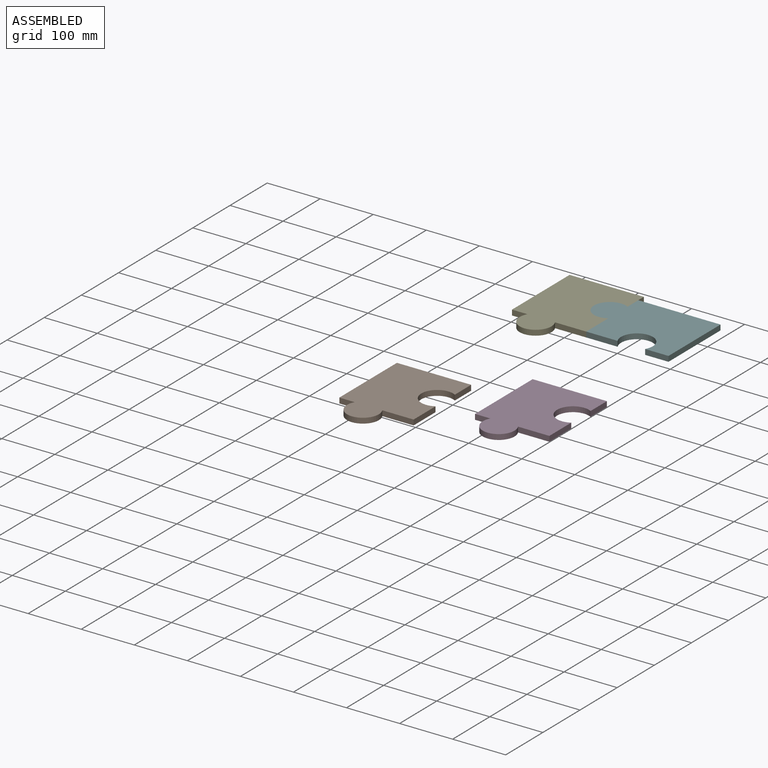
[diagram: assembled view]
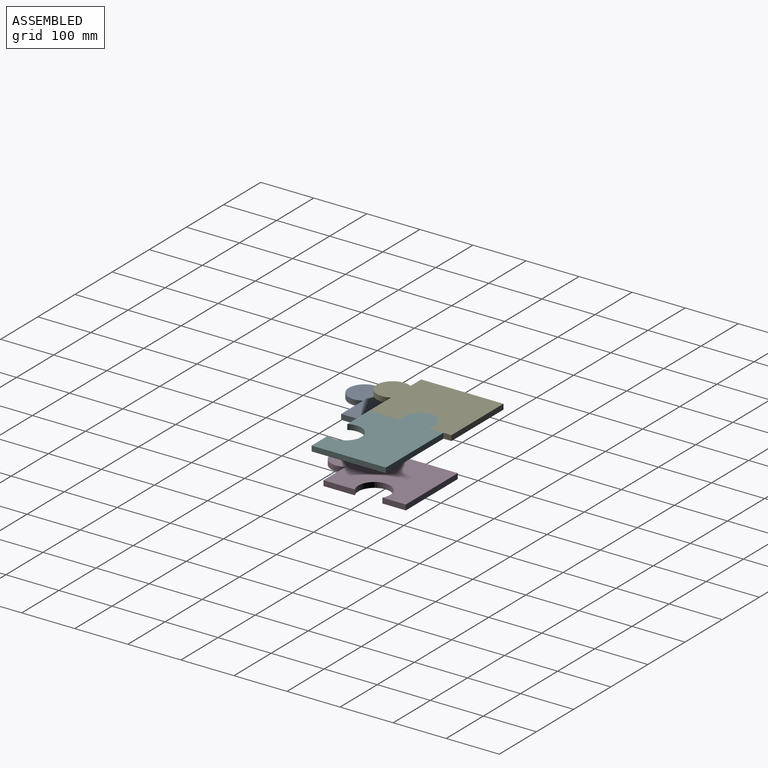
[diagram: assembled view, second angle]
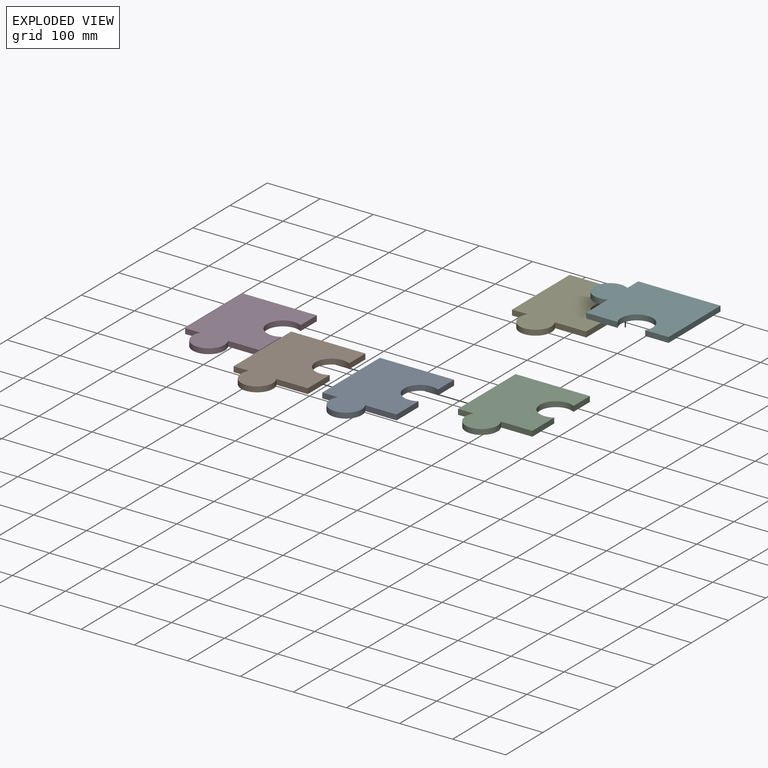
[diagram: exploded view]
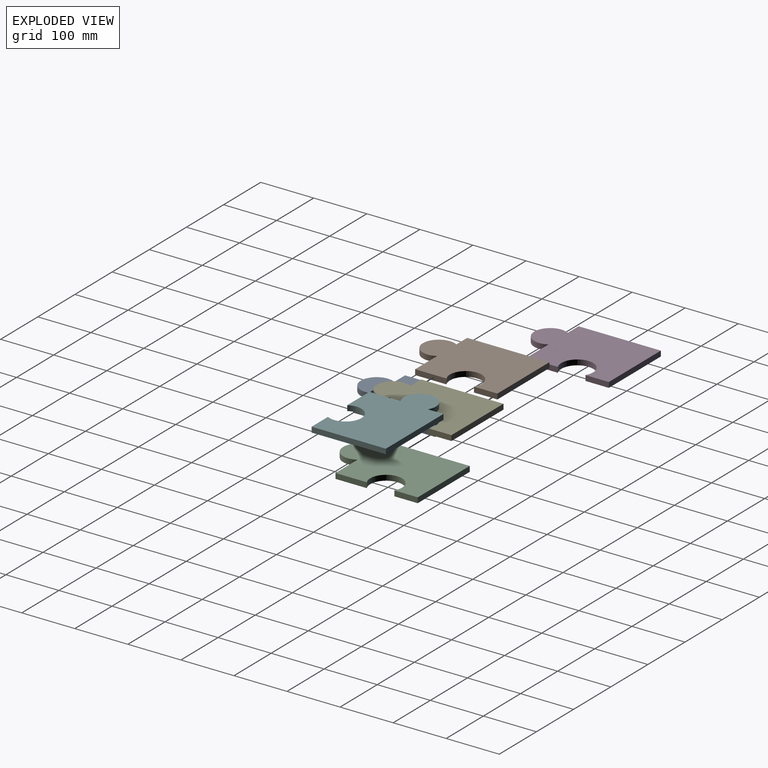
[diagram: exploded view, second angle]
ASSEMBLY  parts=6 mates=3
PART A: 10 faces, bbox 140x200x10 mm
  f0: plane 59.02x10mm, normal (0,-1,0), area 590.2mm2, adj f1,f7,f8,f9
  f1: plane 59.02x10mm, normal (1,0,0), area 590.2mm2, adj f0,f2,f8,f9
  f2: cylinder r=30mm len=60mm, axis (0,0,-1), area 1256.6mm2, adj f1,f3,f8,f9
  f3: plane 44.02x10mm, normal (1,0,0), area 440.2mm2, adj f2,f4,f8,f9
  f4: plane 140x10mm, normal (0,1,0), area 1400mm2, adj f3,f5,f8,f9
  f5: plane 155x10mm, normal (-1,0,0), area 1550mm2, adj f4,f6,f8,f9
  f6: plane 29.02x10mm, normal (0,-1,0), area 290.2mm2, adj f5,f7,f8,f9
  f7: cylinder r=30mm len=60mm, axis (0,0,-1), area 1256.6mm2, adj f0,f6,f8,f9
  f8: plane 200x140mm, normal (0,0,1), area 21700mm2, adj f0,f1,f2,f3,f4,f5,f6,f7
  f9: plane 200x140mm, normal (0,0,-1), area 21700mm2, adj f0,f1,f2,f3,f4,f5,f6,f7
PART B: same geometry as A
PART C: same geometry as A
PART D: same geometry as A
PART E: same geometry as A
PART F: same geometry as A
PLACE A t=(-181.21,-175,45.55)mm
PLACE B t=(-181.21,-175,45.55)mm
PLACE C t=(6.02,-77.02,30.36)mm
PLACE D t=(6.02,-77.02,30.36)mm
PLACE E t=(12.31,13.42,175.18)mm
PLACE F rot(axis=(0,0,-1),90deg) t=(12.31,13.42,175.18)mm
MATE planar F.f8 <-> E.f8  axis (0,0,1) through (78.78,90.22,185.18)mm
MATE cylindrical F.f7 <-> E.f2  axis (0,0,-1) through (-2.69,98.42,175.18)mm
MATE planar F.f0 <-> E.f1  axis (-1,0,0) through (12.31,42.93,185.18)mm
